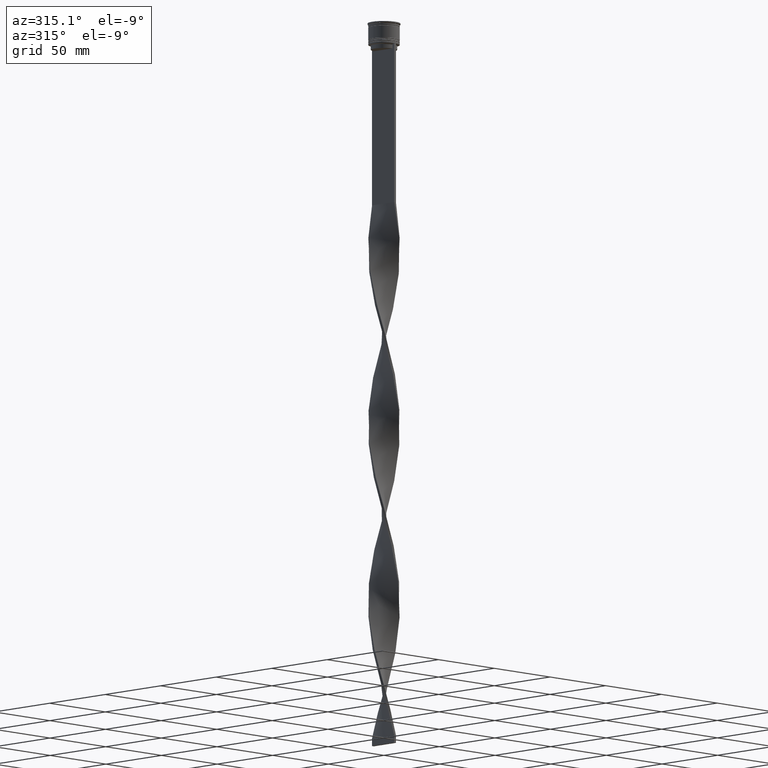
[diagram: clean part render]
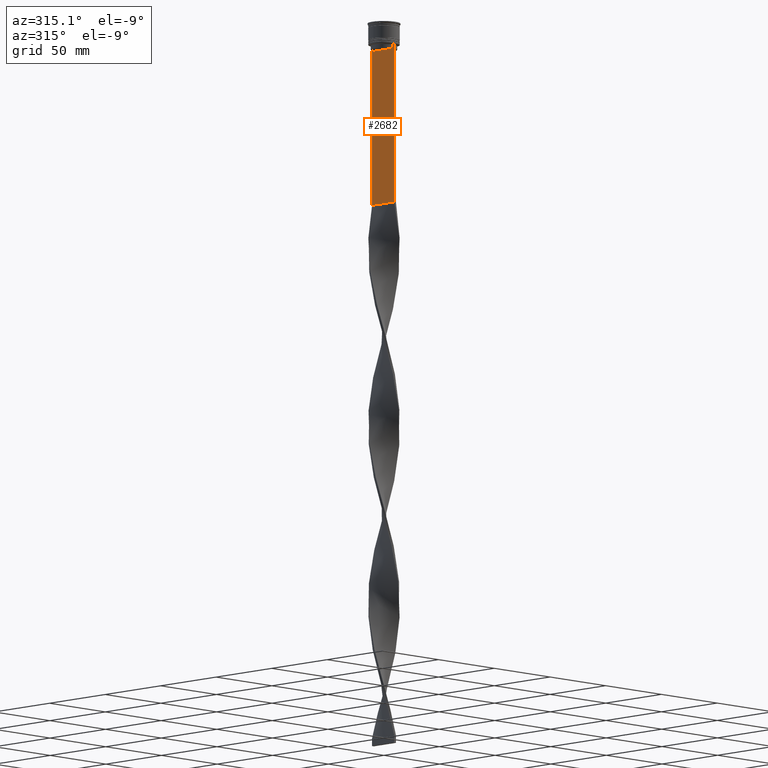
[diagram: same view with one face highlighted and labeled with its STEP entity id]
A machine part, auxiliary view. The second image highlights one B-rep face of the part: STEP entity #2682.
In plain terms, the highlighted planar face has unit normal (-1, 0, 0).
Its self-contained STEP definition (entity closure, byte-faithful):
#172 = ORIENTED_EDGE ( 'NONE', *, *, #2536, .F. ) ;
#176 = EDGE_CURVE ( 'NONE', #257, #896, #4012, .T. ) ;
#181 = DIRECTION ( 'NONE',  ( 0.000000000000000000, 0.000000000000000000, 1.000000000000000000 ) ) ;
#190 = CARTESIAN_POINT ( 'NONE',  ( -0.7499999999999997780, -8.366450860430608927, -17.00000000000000000 ) ) ;
#217 = LINE ( 'NONE', #3651, #3910 ) ;
#257 = VERTEX_POINT ( 'NONE', #1237 ) ;
#397 = VERTEX_POINT ( 'NONE', #3013 ) ;
#406 = AXIS2_PLACEMENT_3D ( 'NONE', #1102, #1869, #181 ) ;
#422 = DIRECTION ( 'NONE',  ( 0.000000000000000000, 1.000000000000000000, 0.000000000000000000 ) ) ;
#427 = FACE_OUTER_BOUND ( 'NONE', #2043, .T. ) ;
#436 = CARTESIAN_POINT ( 'NONE',  ( -0.7499999999999997780, 8.701063075415252257, -14.16668448247791723 ) ) ;
#466 = EDGE_CURVE ( 'NONE', #2273, #3611, #217, .T. ) ;
#487 = LINE ( 'NONE', #3167, #3049 ) ;
#542 = LINE ( 'NONE', #2510, #2640 ) ;
#597 = VERTEX_POINT ( 'NONE', #3674 ) ;
#623 = LINE ( 'NONE', #3374, #2115 ) ;
#653 = VERTEX_POINT ( 'NONE', #1375 ) ;
#703 = VECTOR ( 'NONE', #2312, 1000.000000000000000 ) ;
#727 = VERTEX_POINT ( 'NONE', #4102 ) ;
#771 = CARTESIAN_POINT ( 'NONE',  ( -0.7499999999999997780, -10.00000000000000533, -14.00000000000000178 ) ) ;
#792 = DIRECTION ( 'NONE',  ( 0.000000000000000000, -1.000000000000000000, 0.000000000000000000 ) ) ;
#896 = VERTEX_POINT ( 'NONE', #3546 ) ;
#946 = CARTESIAN_POINT ( 'NONE',  ( -0.7499999999999997780, 9.999999999999998224, 6.056171120131581098 ) ) ;
#988 = CARTESIAN_POINT ( 'NONE',  ( -0.7499999999999997780, -8.366450860430608927, -14.50000000000000000 ) ) ;
#1025 = B_SPLINE_CURVE_WITH_KNOTS ( 'NONE', 3,
 ( #1393, #436, #2815, #4176 ),
 .UNSPECIFIED., .F., .F.,
 ( 4, 4 ),
 ( 0.01512225952876174867, 0.01583070519299695222 ),
 .UNSPECIFIED. ) ;
#1093 = ORIENTED_EDGE ( 'NONE', *, *, #2714, .F. ) ;
#1102 = CARTESIAN_POINT ( 'NONE',  ( -0.7499999999999997780, -10.00000000000000533, 6.056171120131581098 ) ) ;
#1148 = PLANE ( 'NONE',  #406 ) ;
#1159 = VECTOR ( 'NONE', #2625, 1000.000000000000000 ) ;
#1194 = CARTESIAN_POINT ( 'NONE',  ( -0.7499999999999997780, -8.701063080777123204, -14.16668447713511547 ) ) ;
#1207 = ORIENTED_EDGE ( 'NONE', *, *, #1451, .F. ) ;
#1237 = CARTESIAN_POINT ( 'NONE',  ( -0.7499999999999997780, 9.999999999999998224, -14.00000000000000178 ) ) ;
#1279 = DIRECTION ( 'NONE',  ( 0.000000000000000000, 0.000000000000000000, -1.000000000000000000 ) ) ;
#1297 = VERTEX_POINT ( 'NONE', #1632 ) ;
#1356 = ORIENTED_EDGE ( 'NONE', *, *, #1797, .F. ) ;
#1375 = CARTESIAN_POINT ( 'NONE',  ( -0.7499999999999997780, -10.00000000000000533, -14.00000000000000178 ) ) ;
#1393 = CARTESIAN_POINT ( 'NONE',  ( -0.7499999999999997780, 8.868342573446296839, -14.00000000000000178 ) ) ;
#1407 = VECTOR ( 'NONE', #422, 1000.000000000000000 ) ;
#1421 = ORIENTED_EDGE ( 'NONE', *, *, #4401, .F. ) ;
#1451 = EDGE_CURVE ( 'NONE', #397, #2273, #3300, .T. ) ;
#1463 = LINE ( 'NONE', #3796, #1407 ) ;
#1542 = VECTOR ( 'NONE', #792, 1000.000000000000000 ) ;
#1606 = CARTESIAN_POINT ( 'NONE',  ( -0.7499999999999997780, 8.366450860430608927, 0.000000000000000000 ) ) ;
#1623 = EDGE_CURVE ( 'NONE', #1297, #397, #1025, .T. ) ;
#1632 = CARTESIAN_POINT ( 'NONE',  ( -0.7499999999999997780, 8.868342573446296839, -14.00000000000000178 ) ) ;
#1636 = ORIENTED_EDGE ( 'NONE', *, *, #3038, .F. ) ;
#1647 = CARTESIAN_POINT ( 'NONE',  ( -0.7499999999999997780, -10.00000000000000533, -14.00000000000000178 ) ) ;
#1677 = VERTEX_POINT ( 'NONE', #2104 ) ;
#1722 = EDGE_CURVE ( 'NONE', #3611, #2288, #542, .T. ) ;
#1786 = LINE ( 'NONE', #3543, #1542 ) ;
#1797 = EDGE_CURVE ( 'NONE', #2288, #597, #3570, .T. ) ;
#1847 = DIRECTION ( 'NONE',  ( 0.000000000000000000, -1.000000000000000000, 0.000000000000000000 ) ) ;
#1869 = DIRECTION ( 'NONE',  ( -1.000000000000000000, 0.000000000000000000, 0.000000000000000000 ) ) ;
#1953 = ORIENTED_EDGE ( 'NONE', *, *, #2103, .F. ) ;
#2043 = EDGE_LOOP ( 'NONE', ( #2846, #172, #1093, #3297, #1421, #1636, #1953, #3052, #1356, #2582, #2775, #1207 ) ) ;
#2103 = EDGE_CURVE ( 'NONE', #2365, #653, #3336, .T. ) ;
#2104 = CARTESIAN_POINT ( 'NONE',  ( -0.7499999999999998890, -10.00000000000000533, -116.0000000000000000 ) ) ;
#2115 = VECTOR ( 'NONE', #4420, 1000.000000000000000 ) ;
#2151 = DIRECTION ( 'NONE',  ( -0.000000000000000000, -0.000000000000000000, 1.000000000000000000 ) ) ;
#2208 = LINE ( 'NONE', #771, #3829 ) ;
#2273 = VERTEX_POINT ( 'NONE', #3064 ) ;
#2288 = VERTEX_POINT ( 'NONE', #988 ) ;
#2312 = DIRECTION ( 'NONE',  ( 0.000000000000000000, 0.000000000000000000, -1.000000000000000000 ) ) ;
#2365 = VERTEX_POINT ( 'NONE', #2530 ) ;
#2509 = EDGE_CURVE ( 'NONE', #597, #2365, #2208, .T. ) ;
#2510 = CARTESIAN_POINT ( 'NONE',  ( -0.7499999999999997780, -8.366450860430608927, 0.000000000000000000 ) ) ;
#2530 = CARTESIAN_POINT ( 'NONE',  ( -0.7499999999999997780, -9.871550030263740894, -14.00000000000000178 ) ) ;
#2536 = EDGE_CURVE ( 'NONE', #727, #1297, #487, .T. ) ;
#2553 = CARTESIAN_POINT ( 'NONE',  ( -0.7499999999999997780, -8.366450860430608927, -14.50000000000000000 ) ) ;
#2582 = ORIENTED_EDGE ( 'NONE', *, *, #1722, .F. ) ;
#2624 = DIRECTION ( 'NONE',  ( 0.000000000000000000, -1.000000000000000000, 0.000000000000000000 ) ) ;
#2625 = DIRECTION ( 'NONE',  ( 0.000000000000000000, -1.000000000000000000, 0.000000000000000000 ) ) ;
#2640 = VECTOR ( 'NONE', #2151, 1000.000000000000000 ) ;
#2682 = ADVANCED_FACE ( 'NONE', ( #427 ), #1148, .T. ) ;
#2714 = EDGE_CURVE ( 'NONE', #257, #727, #1786, .T. ) ;
#2775 = ORIENTED_EDGE ( 'NONE', *, *, #466, .F. ) ;
#2815 = CARTESIAN_POINT ( 'NONE',  ( -0.7499999999999997780, 8.533766897779926808, -14.33335221373273782 ) ) ;
#2846 = ORIENTED_EDGE ( 'NONE', *, *, #1623, .F. ) ;
#3013 = CARTESIAN_POINT ( 'NONE',  ( -0.7499999999999997780, 8.366450860430608927, -14.50000000000000000 ) ) ;
#3038 = EDGE_CURVE ( 'NONE', #653, #1677, #623, .T. ) ;
#3049 = VECTOR ( 'NONE', #1847, 1000.000000000000000 ) ;
#3052 = ORIENTED_EDGE ( 'NONE', *, *, #2509, .F. ) ;
#3064 = CARTESIAN_POINT ( 'NONE',  ( -0.7499999999999997780, 8.366450860430608927, -17.00000000000000000 ) ) ;
#3137 = VECTOR ( 'NONE', #1279, 1000.000000000000000 ) ;
#3167 = CARTESIAN_POINT ( 'NONE',  ( -0.7499999999999997780, -10.00000000000000533, -14.00000000000000178 ) ) ;
#3297 = ORIENTED_EDGE ( 'NONE', *, *, #176, .T. ) ;
#3300 = LINE ( 'NONE', #1606, #3137 ) ;
#3336 = LINE ( 'NONE', #1647, #1159 ) ;
#3374 = CARTESIAN_POINT ( 'NONE',  ( -0.7499999999999997780, -10.00000000000000533, 6.056171120131581098 ) ) ;
#3481 = DIRECTION ( 'NONE',  ( 0.000000000000000000, -1.000000000000000000, 0.000000000000000000 ) ) ;
#3530 = CARTESIAN_POINT ( 'NONE',  ( -0.7499999999999997780, -8.868342573446296839, -14.00000000000000178 ) ) ;
#3543 = CARTESIAN_POINT ( 'NONE',  ( -0.7499999999999997780, -10.00000000000000533, -14.00000000000000178 ) ) ;
#3546 = CARTESIAN_POINT ( 'NONE',  ( -0.7499999999999997780, 9.999999999999998224, -116.0000000000000000 ) ) ;
#3570 = B_SPLINE_CURVE_WITH_KNOTS ( 'NONE', 3,
 ( #2553, #3598, #1194, #3530 ),
 .UNSPECIFIED., .F., .F.,
 ( 4, 4 ),
 ( 0.03866293624047253963, 0.03937282246709321309 ),
 .UNSPECIFIED. ) ;
#3598 = CARTESIAN_POINT ( 'NONE',  ( -0.7499999999999997780, -8.533766903463440912, -14.33335220807192201 ) ) ;
#3611 = VERTEX_POINT ( 'NONE', #190 ) ;
#3651 = CARTESIAN_POINT ( 'NONE',  ( -0.7499999999999997780, 8.400000000000003908, -17.00000000000000000 ) ) ;
#3674 = CARTESIAN_POINT ( 'NONE',  ( -0.7499999999999997780, -8.868342573446296839, -14.00000000000000178 ) ) ;
#3796 = CARTESIAN_POINT ( 'NONE',  ( -0.7499999999999997780, -10.00000000000000533, -116.0000000000000000 ) ) ;
#3829 = VECTOR ( 'NONE', #3481, 1000.000000000000000 ) ;
#3910 = VECTOR ( 'NONE', #2624, 1000.000000000000000 ) ;
#4012 = LINE ( 'NONE', #946, #703 ) ;
#4102 = CARTESIAN_POINT ( 'NONE',  ( -0.7499999999999997780, 9.871550030263740894, -14.00000000000000178 ) ) ;
#4176 = CARTESIAN_POINT ( 'NONE',  ( -0.7499999999999997780, 8.366450860430608927, -14.50000000000000000 ) ) ;
#4401 = EDGE_CURVE ( 'NONE', #1677, #896, #1463, .T. ) ;
#4420 = DIRECTION ( 'NONE',  ( 0.000000000000000000, 0.000000000000000000, -1.000000000000000000 ) ) ;